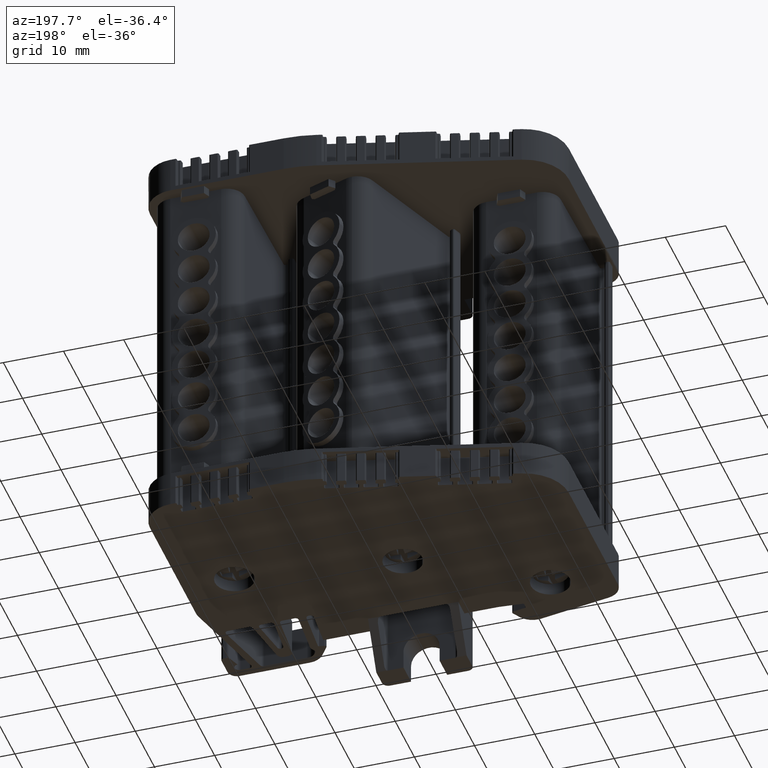
[diagram: clean part render]
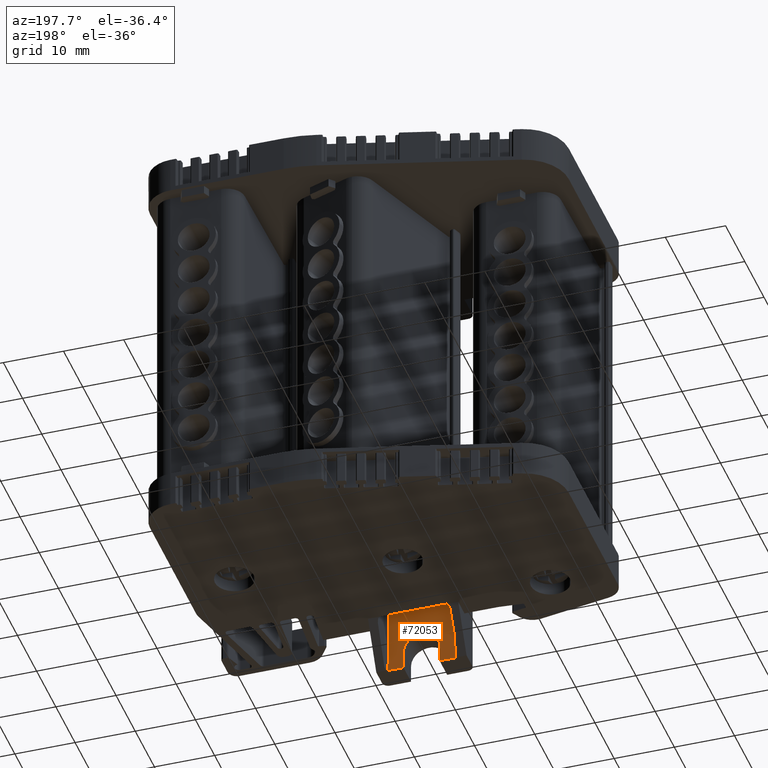
[diagram: same view with one face highlighted and labeled with its STEP entity id]
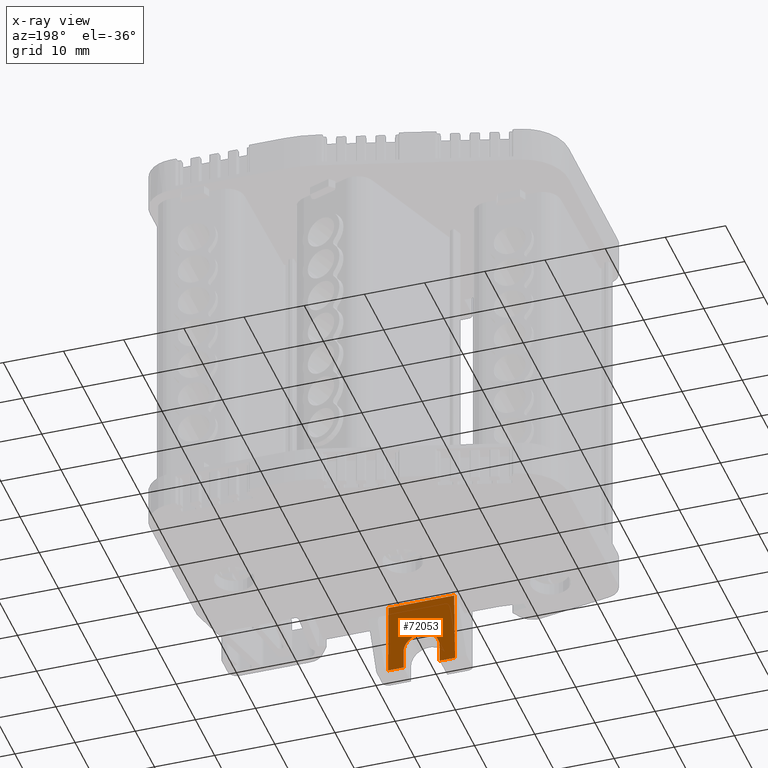
[diagram: x-ray of the same camera — body ghosted, the highlighted face saturated]
A machine part, auxiliary view. The second image highlights one B-rep face of the part: STEP entity #72053.
The next image is the same camera in x-ray: the body ghosted, the highlighted face saturated — about 0% of this face is hidden behind the body in this view.
In plain terms, the highlighted planar face has unit normal (0, -1, 0.0087).
Its self-contained STEP definition (entity closure, byte-faithful):
#11132 = VERTEX_POINT ( 'NONE', #60371 ) ;
#11181 = VERTEX_POINT ( 'NONE', #59175 ) ;
#11183 = VERTEX_POINT ( 'NONE', #59184 ) ;
#11203 = VERTEX_POINT ( 'NONE', #59255 ) ;
#11240 = VERTEX_POINT ( 'NONE', #59277 ) ;
#11244 = VERTEX_POINT ( 'NONE', #59265 ) ;
#11278 = VERTEX_POINT ( 'NONE', #63656 ) ;
#11305 = VERTEX_POINT ( 'NONE', #63662 ) ;
#30231 = AXIS2_PLACEMENT_3D ( 'NONE', #44333, #44218, #44222 ) ;
#44218 = DIRECTION ( 'NONE',  ( 4.628678489509102500E-015, -0.9999619230641713100, 0.008726535498373955500 ) ) ;
#44222 = DIRECTION ( 'NONE',  ( 0.0000000000000000000, -0.008726535498373955500, -0.9999619230641713100 ) ) ;
#44247 = FACE_OUTER_BOUND ( 'NONE', #87263, .T. ) ;
#44331 = PLANE ( 'NONE',  #30231 ) ;
#44333 = CARTESIAN_POINT ( 'NONE',  ( -299.3971182572105400, 191.0688298996789200, 38.61242856084895400 ) ) ;
#48894 =( BOUNDED_CURVE ( )  B_SPLINE_CURVE ( 3, ( #53385, #53387, #53428, #53407 ),
 .UNSPECIFIED., .F., .T. ) 
 B_SPLINE_CURVE_WITH_KNOTS ( ( 4, 4 ),
 ( 1.570796326794366100, 4.712388980384194100 ),
 .UNSPECIFIED. ) 
 CURVE ( )  GEOMETRIC_REPRESENTATION_ITEM ( )  RATIONAL_B_SPLINE_CURVE ( ( 1.000000000000000000, 0.3333333333333218200, 0.3333333333333218200, 1.000000000000000000 ) ) 
 REPRESENTATION_ITEM ( '' )  );
#51613 = LINE ( 'NONE', #51624, #68892 ) ;
#51624 = CARTESIAN_POINT ( 'NONE',  ( -300.8933535342819700, 191.0033728864958700, 31.11179777871986100 ) ) ;
#51640 = DIRECTION ( 'NONE',  ( 1.000000000000000000, -0.0000000000000000000, 0.0000000000000000000 ) ) ;
#51653 = DIRECTION ( 'NONE',  ( 0.0000000000000000000, -0.008726535498373955500, -0.9999619230641713100 ) ) ;
#51656 = LINE ( 'NONE', #51657, #68915 ) ;
#51657 = CARTESIAN_POINT ( 'NONE',  ( -294.8928489085786900, 191.0688298996789500, 38.61242856084895400 ) ) ;
#51994 = LINE ( 'NONE', #52128, #68986 ) ;
#52036 = DIRECTION ( 'NONE',  ( 1.000000000000000000, -0.0000000000000000000, 0.0000000000000000000 ) ) ;
#52128 = CARTESIAN_POINT ( 'NONE',  ( -290.3962622170823200, 191.0033728864958700, 31.11179777871986100 ) ) ;
#53385 = CARTESIAN_POINT ( 'NONE',  ( -300.8933535342820300, 191.0295556917691600, 34.11205009157169600 ) ) ;
#53387 = CARTESIAN_POINT ( 'NONE',  ( -300.8933535342819700, 191.0819213023154900, 40.11255471727518800 ) ) ;
#53407 = CARTESIAN_POINT ( 'NONE',  ( -294.8928489085786900, 191.0295556917691600, 34.11205009157158900 ) ) ;
#53428 = CARTESIAN_POINT ( 'NONE',  ( -294.8928489085784000, 191.0819213023155200, 40.11255471727508100 ) ) ;
#53671 = LINE ( 'NONE', #53718, #68855 ) ;
#53692 = DIRECTION ( 'NONE',  ( -1.000000000000000000, 0.0000000000000000000, -0.0000000000000000000 ) ) ;
#53708 = DIRECTION ( 'NONE',  ( -0.008726203243959370200, -0.008726203243945721300, -0.9999238504775703800 ) ) ;
#53712 = LINE ( 'NONE', #53725, #68835 ) ;
#53718 = CARTESIAN_POINT ( 'NONE',  ( -303.3487701517241800, 191.1098496279402100, 43.31282385098318600 ) ) ;
#53725 = CARTESIAN_POINT ( 'NONE',  ( -327.4595940535327800, 191.1098496279402900, 43.31282385098318600 ) ) ;
#53758 = LINE ( 'NONE', #53770, #68860 ) ;
#53770 = CARTESIAN_POINT ( 'NONE',  ( -300.8933535342819700, 191.0688298996789200, 38.61242856084895400 ) ) ;
#53774 = DIRECTION ( 'NONE',  ( -0.0000000000000000000, 0.008726535498373955500, 0.9999619230641713100 ) ) ;
#53874 = LINE ( 'NONE', #53914, #68910 ) ;
#53879 = DIRECTION ( 'NONE',  ( -0.008726203243909326800, 0.008726203243945723100, 0.9999238504775708200 ) ) ;
#53914 = CARTESIAN_POINT ( 'NONE',  ( -292.3309543723979700, 191.0033728864959800, 31.11179777871986100 ) ) ;
#59175 = CARTESIAN_POINT ( 'NONE',  ( -303.4552468931685200, 191.0033728864960700, 31.11179777871986100 ) ) ;
#59184 = CARTESIAN_POINT ( 'NONE',  ( -292.3309543723978500, 191.0033728864960900, 31.11179777871986100 ) ) ;
#59255 = CARTESIAN_POINT ( 'NONE',  ( -294.8928489085786900, 191.0295556917691600, 34.11205009157158900 ) ) ;
#59265 = CARTESIAN_POINT ( 'NONE',  ( -300.8933535342819700, 191.0033728864959200, 31.11179777871986100 ) ) ;
#59277 = CARTESIAN_POINT ( 'NONE',  ( -303.3487701517241200, 191.1098496279403500, 43.31282385098318600 ) ) ;
#60371 = CARTESIAN_POINT ( 'NONE',  ( -300.8933535342820300, 191.0295556917691600, 34.11205009157169600 ) ) ;
#63656 = CARTESIAN_POINT ( 'NONE',  ( -294.8928489085786900, 191.0033728864959200, 31.11179777871986100 ) ) ;
#63662 = CARTESIAN_POINT ( 'NONE',  ( -292.4374311138419100, 191.1098496279403800, 43.31282385098318600 ) ) ;
#68835 = VECTOR ( 'NONE', #53692, 1000.000000000000000 ) ;
#68855 = VECTOR ( 'NONE', #53708, 1000.000000000000100 ) ;
#68860 = VECTOR ( 'NONE', #53774, 1000.000000000000000 ) ;
#68892 = VECTOR ( 'NONE', #51640, 1000.000000000000000 ) ;
#68910 = VECTOR ( 'NONE', #53879, 1000.000000000000000 ) ;
#68915 = VECTOR ( 'NONE', #51653, 1000.000000000000000 ) ;
#68986 = VECTOR ( 'NONE', #52036, 1000.000000000000000 ) ;
#72053 = ADVANCED_FACE ( 'NONE', ( #44247 ), #44331, .F. ) ;
#73159 = ORIENTED_EDGE ( 'NONE', *, *, #78216, .F. ) ;
#73187 = ORIENTED_EDGE ( 'NONE', *, *, #78593, .F. ) ;
#73197 = ORIENTED_EDGE ( 'NONE', *, *, #78405, .F. ) ;
#73199 = ORIENTED_EDGE ( 'NONE', *, *, #78464, .F. ) ;
#73208 = ORIENTED_EDGE ( 'NONE', *, *, #78328, .F. ) ;
#73226 = ORIENTED_EDGE ( 'NONE', *, *, #78326, .F. ) ;
#73237 = ORIENTED_EDGE ( 'NONE', *, *, #78359, .F. ) ;
#73239 = ORIENTED_EDGE ( 'NONE', *, *, #78419, .F. ) ;
#78216 = EDGE_CURVE ( 'NONE', #11132, #11203, #48894, .T. ) ;
#78326 = EDGE_CURVE ( 'NONE', #11305, #11240, #53712, .T. ) ;
#78328 = EDGE_CURVE ( 'NONE', #11240, #11181, #53671, .T. ) ;
#78359 = EDGE_CURVE ( 'NONE', #11244, #11132, #53758, .T. ) ;
#78405 = EDGE_CURVE ( 'NONE', #11183, #11305, #53874, .T. ) ;
#78419 = EDGE_CURVE ( 'NONE', #11181, #11244, #51613, .T. ) ;
#78464 = EDGE_CURVE ( 'NONE', #11203, #11278, #51656, .T. ) ;
#78593 = EDGE_CURVE ( 'NONE', #11278, #11183, #51994, .T. ) ;
#87263 = EDGE_LOOP ( 'NONE', ( #73197, #73187, #73199, #73159, #73237, #73239, #73208, #73226 ) ) ;